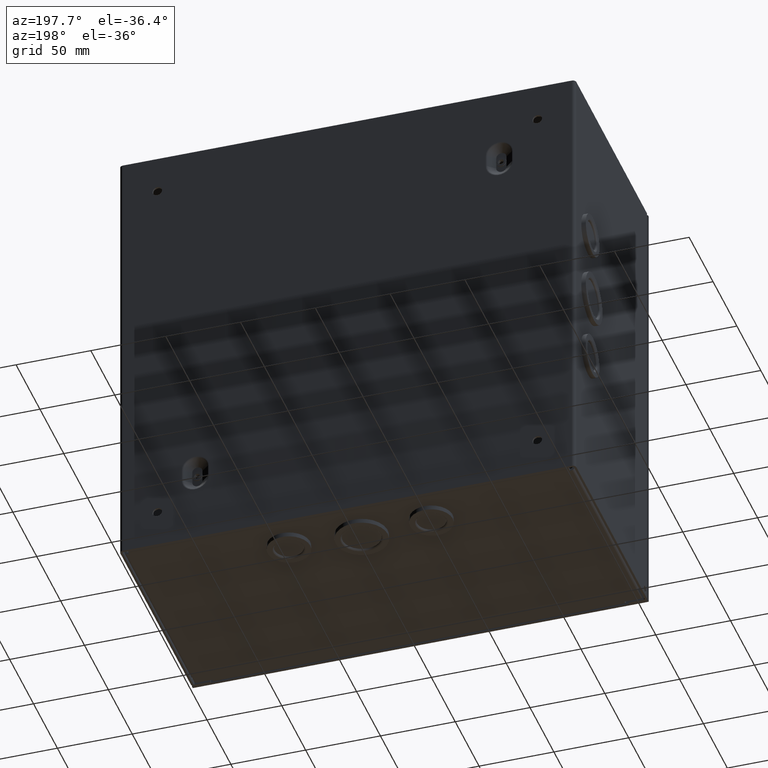
[diagram: clean part render]
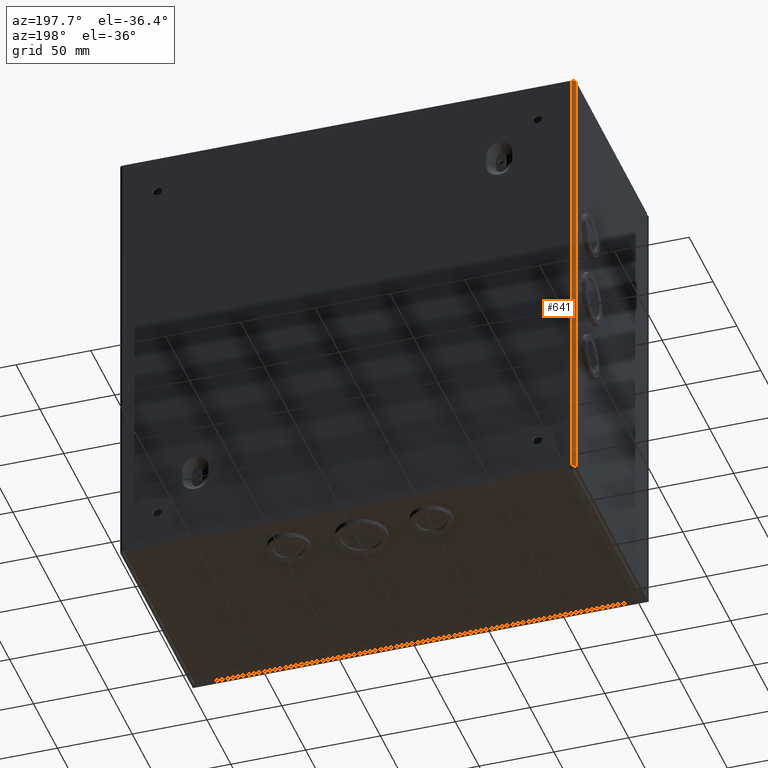
[diagram: same view with one face highlighted and labeled with its STEP entity id]
A machine part, auxiliary view. The second image highlights one B-rep face of the part: STEP entity #641.
In plain terms, the highlighted cylindrical surface (edge-blend (fillet) strip) has radius 2.3368 mm, axis along (-0, -0, -1).
Its self-contained STEP definition (entity closure, byte-faithful):
#641 = ADVANCED_FACE( '', ( #1474 ), #1475, .T. );
#1474 = FACE_OUTER_BOUND( '', #2585, .T. );
#1475 = CYLINDRICAL_SURFACE( '', #2586, 2.33680000000000 );
#2585 = EDGE_LOOP( '', ( #4215, #4216, #4217, #4218 ) );
#2586 = AXIS2_PLACEMENT_3D( '', #4219, #4220, #4221 );
#4215 = ORIENTED_EDGE( '', *, *, #6397, .T. );
#4216 = ORIENTED_EDGE( '', *, *, #6398, .F. );
#4217 = ORIENTED_EDGE( '', *, *, #6399, .F. );
#4218 = ORIENTED_EDGE( '', *, *, #6400, .T. );
#4219 = CARTESIAN_POINT( '', ( -150.063200000000, 73.8632000000000, -152.400000000000 ) );
#4220 = DIRECTION( '', ( -0.000000000000000, -0.000000000000000, -1.00000000000000 ) );
#4221 = DIRECTION( '', ( 1.00000000000000, 0.000000000000000, 0.000000000000000 ) );
#6397 = EDGE_CURVE( '', #7682, #7683, #7684, .F. );
#6398 = EDGE_CURVE( '', #7685, #7683, #7686, .T. );
#6399 = EDGE_CURVE( '', #7687, #7685, #7688, .F. );
#6400 = EDGE_CURVE( '', #7687, #7682, #7689, .T. );
#7682 = VERTEX_POINT( '', #9471 );
#7683 = VERTEX_POINT( '', #9472 );
#7684 = CIRCLE( '', #9473, 2.33680000000000 );
#7685 = VERTEX_POINT( '', #9474 );
#7686 = LINE( '', #9475, #9476 );
#7687 = VERTEX_POINT( '', #9477 );
#7688 = CIRCLE( '', #9478, 2.33680000000000 );
#7689 = LINE( '', #9479, #9480 );
#9471 = CARTESIAN_POINT( '', ( -152.400000000000, 73.8632000000000, 152.400000000000 ) );
#9472 = CARTESIAN_POINT( '', ( -150.063200000000, 76.2000000000000, 152.400000000000 ) );
#9473 = AXIS2_PLACEMENT_3D( '', #10840, #10841, #10842 );
#9474 = CARTESIAN_POINT( '', ( -150.063200000000, 76.2000000000000, -152.400000000000 ) );
#9475 = CARTESIAN_POINT( '', ( -150.063200000000, 76.2000000000000, -152.400000000000 ) );
#9476 = VECTOR( '', #10843, 1000.00000000000 );
#9477 = CARTESIAN_POINT( '', ( -152.400000000000, 73.8632000000000, -152.400000000000 ) );
#9478 = AXIS2_PLACEMENT_3D( '', #10844, #10845, #10846 );
#9479 = CARTESIAN_POINT( '', ( -152.400000000000, 73.8632000000000, -152.400000000000 ) );
#9480 = VECTOR( '', #10847, 1000.00000000000 );
#10840 = CARTESIAN_POINT( '', ( -150.063200000000, 73.8632000000000, 152.400000000000 ) );
#10841 = DIRECTION( '', ( 0.000000000000000, 0.000000000000000, 1.00000000000000 ) );
#10842 = DIRECTION( '', ( 1.00000000000000, 0.000000000000000, 0.000000000000000 ) );
#10843 = DIRECTION( '', ( 0.000000000000000, 0.000000000000000, 1.00000000000000 ) );
#10844 = CARTESIAN_POINT( '', ( -150.063200000000, 73.8632000000000, -152.400000000000 ) );
#10845 = DIRECTION( '', ( 0.000000000000000, 0.000000000000000, 1.00000000000000 ) );
#10846 = DIRECTION( '', ( 1.00000000000000, 0.000000000000000, 0.000000000000000 ) );
#10847 = DIRECTION( '', ( 0.000000000000000, 0.000000000000000, 1.00000000000000 ) );